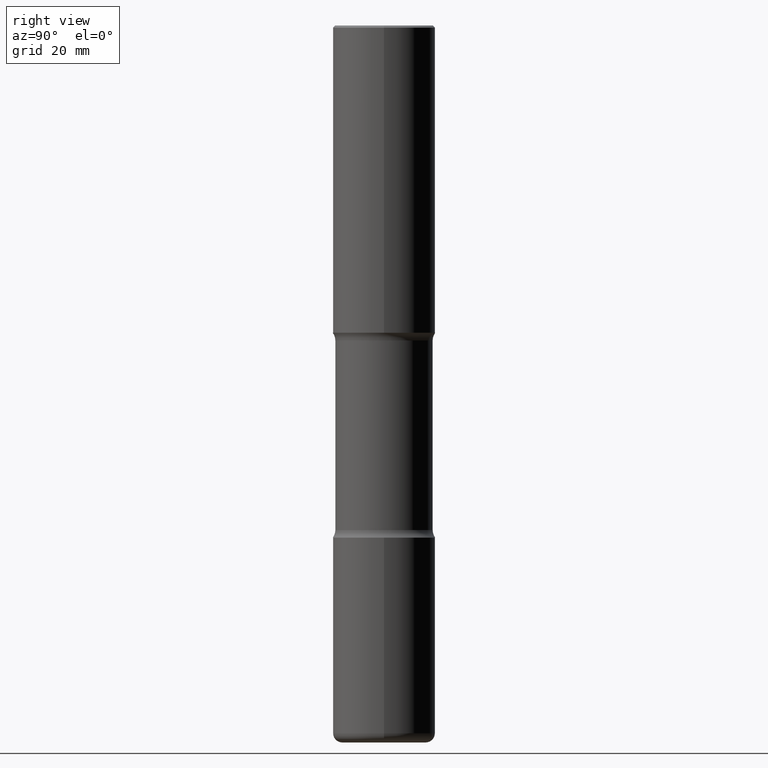
[diagram: clean part render]
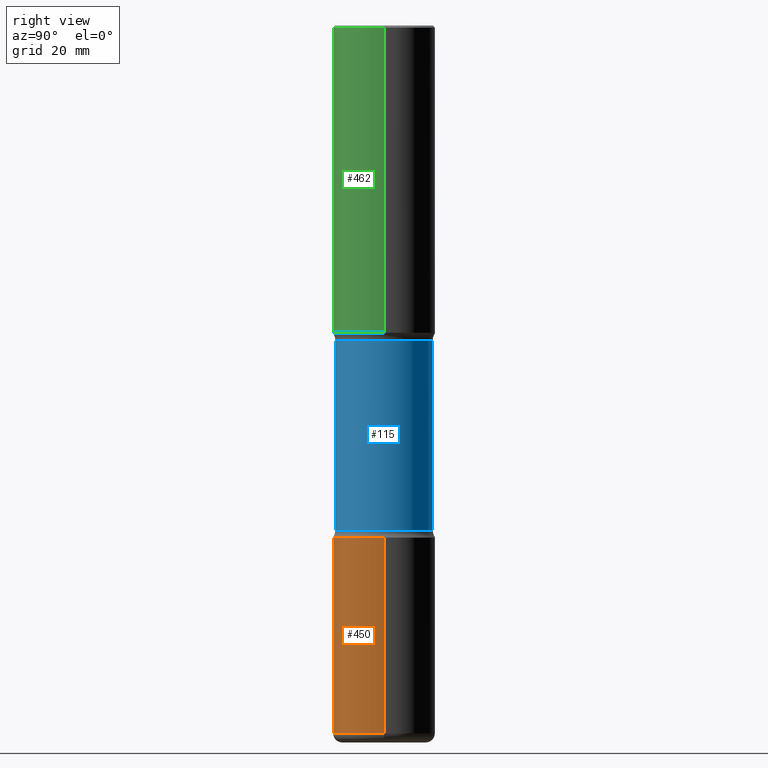
[diagram: same view with three faces highlighted in distinct colors, each labeled with its STEP entity id]
A machine part, right view with three faces highlighted in distinct colors.
Their STEP definitions:

[orange] entity #450 — the highlighted cylindrical surface (partial cylindrical patch) has radius 12.7 mm, axis along (-0, 0, 1).
#8 = VERTEX_POINT ( 'NONE', #280 ) ;
#10 = ORIENTED_EDGE ( 'NONE', *, *, #126, .T. ) ;
#39 = VECTOR ( 'NONE', #510, 39.37007874015748143 ) ;
#57 = CARTESIAN_POINT ( 'NONE',  ( 1.689818945073929451E-28, -2.412613605140613858E-14, -6.910000000000000142 ) ) ;
#104 = EDGE_CURVE ( 'NONE', #8, #160, #416, .T. ) ;
#116 = AXIS2_PLACEMENT_3D ( 'NONE', #57, #151, #395 ) ;
#123 = EDGE_CURVE ( 'NONE', #533, #8, #352, .T. ) ;
#126 = EDGE_CURVE ( 'NONE', #357, #160, #295, .T. ) ;
#144 = CARTESIAN_POINT ( 'NONE',  ( 0.5000000000000002220, -2.094888803305886009E-14, -4.999999999999999112 ) ) ;
#151 = DIRECTION ( 'NONE',  ( -2.445468806185136597E-29, 3.491481338843145583E-15, 1.000000000000000000 ) ) ;
#160 = VERTEX_POINT ( 'NONE', #144 ) ;
#163 = FACE_OUTER_BOUND ( 'NONE', #183, .T. ) ;
#177 = ORIENTED_EDGE ( 'NONE', *, *, #104, .F. ) ;
#183 = EDGE_LOOP ( 'NONE', ( #336, #405, #10, #177 ) ) ;
#200 = VECTOR ( 'NONE', #433, 39.37007874015748143 ) ;
#207 = DIRECTION ( 'NONE',  ( -2.445468806185136597E-29, 3.491481338843145583E-15, 1.000000000000000000 ) ) ;
#208 = AXIS2_PLACEMENT_3D ( 'NONE', #311, #402, #222 ) ;
#222 = DIRECTION ( 'NONE',  ( 1.000000000000000000, -6.982962677686263555E-15, 0.000000000000000000 ) ) ;
#264 = EDGE_CURVE ( 'NONE', #533, #357, #428, .T. ) ;
#280 = CARTESIAN_POINT ( 'NONE',  ( -0.5000000000000002220, -1.723905769401042541E-14, -4.999999999999999112 ) ) ;
#295 = LINE ( 'NONE', #427, #39 ) ;
#298 = CARTESIAN_POINT ( 'NONE',  ( 0.000000000000000000, 0.000000000000000000, 0.000000000000000000 ) ) ;
#311 = CARTESIAN_POINT ( 'NONE',  ( 1.222734403092568074E-28, -1.745740669421572673E-14, -4.999999999999999112 ) ) ;
#336 = ORIENTED_EDGE ( 'NONE', *, *, #123, .F. ) ;
#347 = CYLINDRICAL_SURFACE ( 'NONE', #472, 0.5000000000000004441 ) ;
#352 = LINE ( 'NONE', #467, #200 ) ;
#357 = VERTEX_POINT ( 'NONE', #365 ) ;
#365 = CARTESIAN_POINT ( 'NONE',  ( 0.5000000000000005551, -2.761761739024927509E-14, -6.910000000000000142 ) ) ;
#395 = DIRECTION ( 'NONE',  ( 1.000000000000000000, -6.982962677686270655E-15, 0.000000000000000000 ) ) ;
#398 = CARTESIAN_POINT ( 'NONE',  ( -0.5000000000000005551, -2.057342237260563133E-14, -6.910000000000000142 ) ) ;
#402 = DIRECTION ( 'NONE',  ( -2.445468806185136597E-29, 3.491481338843145583E-15, 1.000000000000000000 ) ) ;
#405 = ORIENTED_EDGE ( 'NONE', *, *, #264, .T. ) ;
#416 = CIRCLE ( 'NONE', #208, 0.5000000000000002220 ) ;
#427 = CARTESIAN_POINT ( 'NONE',  ( 0.5000000000000004441, -3.491481338843136511E-15, 2.438088387897969858E-29 ) ) ;
#428 = CIRCLE ( 'NONE', #116, 0.5000000000000005551 ) ;
#433 = DIRECTION ( 'NONE',  ( -2.445468806185136877E-29, 3.491481338843145188E-15, 1.000000000000000000 ) ) ;
#450 = ADVANCED_FACE ( 'NONE', ( #163 ), #347, .T. ) ;
#467 = CARTESIAN_POINT ( 'NONE',  ( -0.5000000000000004441, 3.552713678800504085E-15, -2.459467545127455133E-29 ) ) ;
#472 = AXIS2_PLACEMENT_3D ( 'NONE', #298, #207, #556 ) ;
#510 = DIRECTION ( 'NONE',  ( -2.445468806185136877E-29, 3.491481338843145188E-15, 1.000000000000000000 ) ) ;
#533 = VERTEX_POINT ( 'NONE', #398 ) ;
#556 = DIRECTION ( 'NONE',  ( 1.000000000000000000, -6.982962677686266711E-15, 4.876176775795935232E-29 ) ) ;

[blue] entity #115 — the highlighted cylindrical surface (partial cylindrical patch) has radius 12.065 mm, axis along (0, -0, -1).
#24 = AXIS2_PLACEMENT_3D ( 'NONE', #172, #253, #434 ) ;
#30 = VERTEX_POINT ( 'NONE', #95 ) ;
#67 = DIRECTION ( 'NONE',  ( 2.495638921910708014E-29, -3.419634877618474112E-15, -1.000000000000000000 ) ) ;
#87 = LINE ( 'NONE', #437, #417 ) ;
#95 = CARTESIAN_POINT ( 'NONE',  ( -3.344492773913550718E-15, -0.4750000000000109690, -3.074999999999998401 ) ) ;
#102 = DIRECTION ( 'NONE',  ( 6.982962677686265133E-15, 1.000000000000000000, -3.450755360418015555E-15 ) ) ;
#115 = ADVANCED_FACE ( 'NONE', ( #438 ), #350, .T. ) ;
#122 = CARTESIAN_POINT ( 'NONE',  ( 7.423239106247569958E-29, -1.087460955480016368E-14, -3.074999999999999734 ) ) ;
#152 = CARTESIAN_POINT ( 'NONE',  ( -3.258736548941304889E-15, -0.4750000000000243472, -6.999999999999997335 ) ) ;
#153 = VERTEX_POINT ( 'NONE', #558 ) ;
#164 = AXIS2_PLACEMENT_3D ( 'NONE', #122, #540, #102 ) ;
#172 = CARTESIAN_POINT ( 'NONE',  ( 1.204017111178237438E-28, -1.720093407839433761E-14, -4.924999999999998046 ) ) ;
#178 = CARTESIAN_POINT ( 'NONE',  ( 1.721862187474709565E-28, -2.429667644945267101E-14, -6.999999999999998224 ) ) ;
#209 = VECTOR ( 'NONE', #67, 39.37007874015748143 ) ;
#246 = EDGE_CURVE ( 'NONE', #360, #30, #375, .T. ) ;
#253 = DIRECTION ( 'NONE',  ( 2.495638921910708014E-29, -3.419634877618474112E-15, -1.000000000000000000 ) ) ;
#290 = CARTESIAN_POINT ( 'NONE',  ( 3.316907271901096594E-15, 0.4749999999999827693, -4.924999999999999822 ) ) ;
#291 = AXIS2_PLACEMENT_3D ( 'NONE', #178, #358, #522 ) ;
#292 = CIRCLE ( 'NONE', #24, 0.4749999999999999778 ) ;
#329 = LINE ( 'NONE', #152, #209 ) ;
#335 = EDGE_CURVE ( 'NONE', #360, #401, #87, .T. ) ;
#350 = CYLINDRICAL_SURFACE ( 'NONE', #291, 0.4750000000000000333 ) ;
#358 = DIRECTION ( 'NONE',  ( 2.495638921910708014E-29, -3.419634877618474112E-15, -1.000000000000000000 ) ) ;
#360 = VERTEX_POINT ( 'NONE', #457 ) ;
#361 = EDGE_CURVE ( 'NONE', #30, #153, #329, .T. ) ;
#366 = ORIENTED_EDGE ( 'NONE', *, *, #361, .T. ) ;
#375 = CIRCLE ( 'NONE', #164, 0.4750000000000001443 ) ;
#401 = VERTEX_POINT ( 'NONE', #290 ) ;
#417 = VECTOR ( 'NONE', #514, 39.37007874015748143 ) ;
#434 = DIRECTION ( 'NONE',  ( 6.982962677686265133E-15, 1.000000000000000000, -2.300503573612011422E-15 ) ) ;
#437 = CARTESIAN_POINT ( 'NONE',  ( 3.316907271901148659E-15, 0.4749999999999757194, -7.000000000000000000 ) ) ;
#438 = FACE_OUTER_BOUND ( 'NONE', #487, .T. ) ;
#457 = CARTESIAN_POINT ( 'NONE',  ( 3.316907271901051235E-15, 0.4749999999999892641, -3.075000000000001510 ) ) ;
#468 = ORIENTED_EDGE ( 'NONE', *, *, #246, .T. ) ;
#487 = EDGE_LOOP ( 'NONE', ( #468, #366, #550, #515 ) ) ;
#504 = EDGE_CURVE ( 'NONE', #401, #153, #292, .T. ) ;
#514 = DIRECTION ( 'NONE',  ( 2.495638921910708014E-29, -3.419634877618474112E-15, -1.000000000000000000 ) ) ;
#515 = ORIENTED_EDGE ( 'NONE', *, *, #335, .F. ) ;
#522 = DIRECTION ( 'NONE',  ( 6.982962677686265922E-15, 1.000000000000000000, -2.300503573612011028E-15 ) ) ;
#540 = DIRECTION ( 'NONE',  ( 2.495638921910708014E-29, -3.419634877618474112E-15, -1.000000000000000000 ) ) ;
#550 = ORIENTED_EDGE ( 'NONE', *, *, #504, .F. ) ;
#558 = CARTESIAN_POINT ( 'NONE',  ( -3.344492773913500625E-15, -0.4750000000000171863, -4.924999999999997158 ) ) ;

[green] entity #462 — the highlighted cylindrical surface (partial cylindrical patch) has radius 12.7 mm, axis along (-0, 0, 1).
#4 = EDGE_CURVE ( 'NONE', #35, #541, #553, .T. ) ;
#6 = CARTESIAN_POINT ( 'NONE',  ( -0.5000000000000001110, 3.552713678800501718E-15, -2.459467545127453732E-29 ) ) ;
#7 = EDGE_LOOP ( 'NONE', ( #529, #162, #547, #364 ) ) ;
#11 = CIRCLE ( 'NONE', #255, 0.4999999999999999445 ) ;
#14 = VERTEX_POINT ( 'NONE', #486 ) ;
#35 = VERTEX_POINT ( 'NONE', #270 ) ;
#59 = AXIS2_PLACEMENT_3D ( 'NONE', #535, #146, #313 ) ;
#85 = DIRECTION ( 'NONE',  ( -2.445468806185136597E-29, 3.491481338843145583E-15, 1.000000000000000000 ) ) ;
#100 = EDGE_CURVE ( 'NONE', #499, #14, #11, .T. ) ;
#105 = DIRECTION ( 'NONE',  ( -2.445468806185136877E-29, 3.491481338843145188E-15, 1.000000000000000000 ) ) ;
#106 = CARTESIAN_POINT ( 'NONE',  ( 0.5000000000000002220, -1.396592535537256813E-14, -2.999999999999999112 ) ) ;
#114 = CYLINDRICAL_SURFACE ( 'NONE', #308, 0.5000000000000001110 ) ;
#146 = DIRECTION ( 'NONE',  ( -2.445468806185136597E-29, 3.491481338843145583E-15, 1.000000000000000000 ) ) ;
#155 = VECTOR ( 'NONE', #301, 39.37007874015748143 ) ;
#162 = ORIENTED_EDGE ( 'NONE', *, *, #4, .T. ) ;
#227 = LINE ( 'NONE', #322, #559 ) ;
#255 = AXIS2_PLACEMENT_3D ( 'NONE', #338, #85, #272 ) ;
#261 = CARTESIAN_POINT ( 'NONE',  ( -0.4999999999999999445, 3.421651712066269663E-15, -0.02000000000000013572 ) ) ;
#270 = CARTESIAN_POINT ( 'NONE',  ( -0.5000000000000002220, -1.719423142852643572E-15, -2.999999999999999112 ) ) ;
#272 = DIRECTION ( 'NONE',  ( 1.000000000000000000, -6.982962677686266711E-15, 0.000000000000000000 ) ) ;
#301 = DIRECTION ( 'NONE',  ( -2.445468806185136877E-29, 3.491481338843145188E-15, 1.000000000000000000 ) ) ;
#308 = AXIS2_PLACEMENT_3D ( 'NONE', #312, #479, #482 ) ;
#312 = CARTESIAN_POINT ( 'NONE',  ( 0.000000000000000000, 0.000000000000000000, 0.000000000000000000 ) ) ;
#313 = DIRECTION ( 'NONE',  ( 1.000000000000000000, -6.982962677686267499E-15, 0.000000000000000000 ) ) ;
#322 = CARTESIAN_POINT ( 'NONE',  ( 0.5000000000000001110, -3.491481338843134539E-15, 2.438088387897968457E-29 ) ) ;
#338 = CARTESIAN_POINT ( 'NONE',  ( 4.890937612370306439E-31, -6.982962677686338448E-17, -0.02000000000000013572 ) ) ;
#364 = ORIENTED_EDGE ( 'NONE', *, *, #100, .F. ) ;
#389 = FACE_OUTER_BOUND ( 'NONE', #7, .T. ) ;
#400 = LINE ( 'NONE', #6, #155 ) ;
#441 = EDGE_CURVE ( 'NONE', #35, #499, #400, .T. ) ;
#462 = ADVANCED_FACE ( 'NONE', ( #389 ), #114, .T. ) ;
#479 = DIRECTION ( 'NONE',  ( -2.445468806185136597E-29, 3.491481338843145583E-15, 1.000000000000000000 ) ) ;
#482 = DIRECTION ( 'NONE',  ( 1.000000000000000000, -6.982962677686267499E-15, 4.876176775795935793E-29 ) ) ;
#483 = EDGE_CURVE ( 'NONE', #541, #14, #227, .T. ) ;
#486 = CARTESIAN_POINT ( 'NONE',  ( 0.4999999999999999445, -3.500078625662628685E-15, -0.02000000000000013572 ) ) ;
#499 = VERTEX_POINT ( 'NONE', #261 ) ;
#529 = ORIENTED_EDGE ( 'NONE', *, *, #441, .F. ) ;
#535 = CARTESIAN_POINT ( 'NONE',  ( 7.336406418555407548E-29, -1.047444401652943320E-14, -2.999999999999999112 ) ) ;
#541 = VERTEX_POINT ( 'NONE', #106 ) ;
#547 = ORIENTED_EDGE ( 'NONE', *, *, #483, .T. ) ;
#553 = CIRCLE ( 'NONE', #59, 0.5000000000000002220 ) ;
#559 = VECTOR ( 'NONE', #105, 39.37007874015748143 ) ;